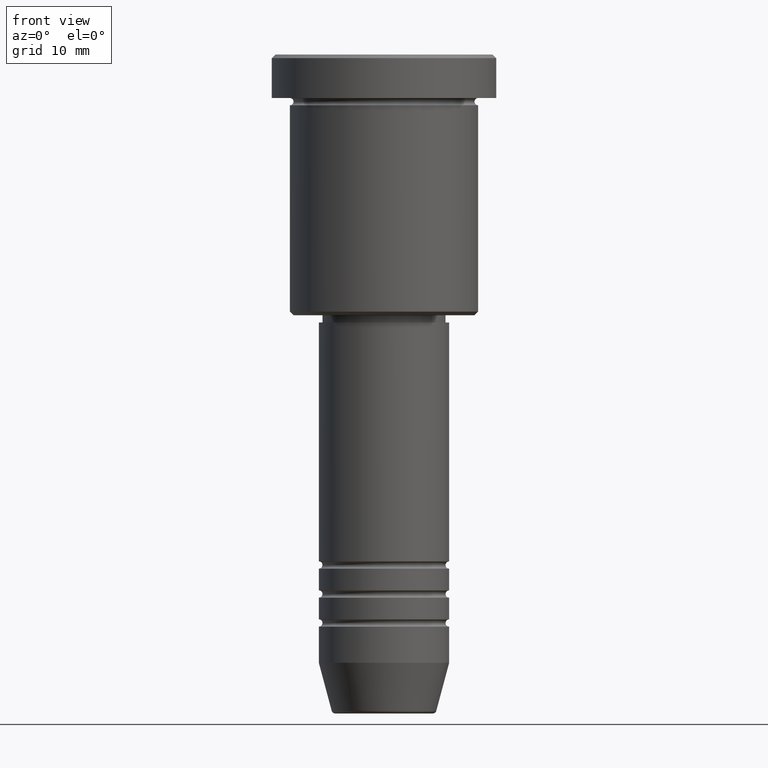
[diagram: clean part render]
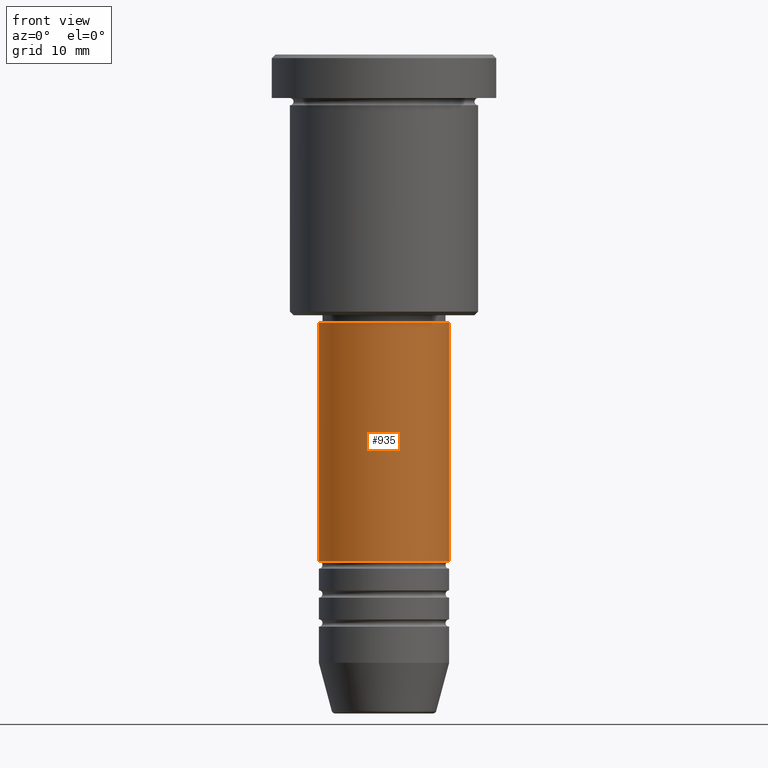
[diagram: same view with one face highlighted and labeled with its STEP entity id]
A machine part, front view. The second image highlights one B-rep face of the part: STEP entity #935.
In plain terms, the highlighted cylindrical surface (partial cylindrical patch) has radius 9 mm, axis along (-0, -0, 1).
Its self-contained STEP definition (entity closure, byte-faithful):
#15 = ORIENTED_EDGE ( 'NONE', *, *, #1081, .F. ) ;
#83 = CARTESIAN_POINT ( 'NONE',  ( 0.000000000000000000, 0.000000000000000000, -37.00000000000000000 ) ) ;
#241 = EDGE_CURVE ( 'NONE', #1008, #422, #998, .T. ) ;
#284 = CARTESIAN_POINT ( 'NONE',  ( -9.000000000000000000, 1.102182119232617714E-15, 0.000000000000000000 ) ) ;
#290 = VECTOR ( 'NONE', #455, 1000.000000000000000 ) ;
#302 = EDGE_CURVE ( 'NONE', #636, #1008, #365, .T. ) ;
#319 = DIRECTION ( 'NONE',  ( 1.000000000000000000, 0.000000000000000000, 0.000000000000000000 ) ) ;
#359 = DIRECTION ( 'NONE',  ( 1.000000000000000000, 0.000000000000000000, 0.000000000000000000 ) ) ;
#365 = CIRCLE ( 'NONE', #1124, 9.000000000000001776 ) ;
#395 = DIRECTION ( 'NONE',  ( 1.000000000000000000, 0.000000000000000000, 0.000000000000000000 ) ) ;
#422 = VERTEX_POINT ( 'NONE', #584 ) ;
#446 = DIRECTION ( 'NONE',  ( -0.000000000000000000, -0.000000000000000000, 1.000000000000000000 ) ) ;
#450 = CARTESIAN_POINT ( 'NONE',  ( 9.000000000000001776, 0.000000000000000000, -69.99999999999988631 ) ) ;
#455 = DIRECTION ( 'NONE',  ( -0.000000000000000000, -0.000000000000000000, 1.000000000000000000 ) ) ;
#470 = CARTESIAN_POINT ( 'NONE',  ( -9.000000000000001776, 1.102182119232617911E-15, -69.99999999999988631 ) ) ;
#478 = DIRECTION ( 'NONE',  ( -0.000000000000000000, -0.000000000000000000, 1.000000000000000000 ) ) ;
#512 = CYLINDRICAL_SURFACE ( 'NONE', #722, 9.000000000000000000 ) ;
#515 = ORIENTED_EDGE ( 'NONE', *, *, #741, .F. ) ;
#556 = CARTESIAN_POINT ( 'NONE',  ( 9.000000000000000000, 0.000000000000000000, 0.000000000000000000 ) ) ;
#584 = CARTESIAN_POINT ( 'NONE',  ( 8.999999999999998224, 0.000000000000000000, -37.00000000000000000 ) ) ;
#600 = CARTESIAN_POINT ( 'NONE',  ( 0.000000000000000000, 0.000000000000000000, 0.000000000000000000 ) ) ;
#636 = VERTEX_POINT ( 'NONE', #470 ) ;
#684 = ORIENTED_EDGE ( 'NONE', *, *, #241, .T. ) ;
#703 = VERTEX_POINT ( 'NONE', #928 ) ;
#722 = AXIS2_PLACEMENT_3D ( 'NONE', #600, #869, #319 ) ;
#723 = DIRECTION ( 'NONE',  ( -0.000000000000000000, -0.000000000000000000, 1.000000000000000000 ) ) ;
#741 = EDGE_CURVE ( 'NONE', #636, #703, #840, .T. ) ;
#742 = CIRCLE ( 'NONE', #881, 8.999999999999998224 ) ;
#759 = VECTOR ( 'NONE', #723, 1000.000000000000000 ) ;
#805 = CARTESIAN_POINT ( 'NONE',  ( 0.000000000000000000, 0.000000000000000000, -69.99999999999988631 ) ) ;
#840 = LINE ( 'NONE', #284, #290 ) ;
#856 = ORIENTED_EDGE ( 'NONE', *, *, #302, .T. ) ;
#869 = DIRECTION ( 'NONE',  ( -0.000000000000000000, -0.000000000000000000, 1.000000000000000000 ) ) ;
#881 = AXIS2_PLACEMENT_3D ( 'NONE', #83, #446, #359 ) ;
#928 = CARTESIAN_POINT ( 'NONE',  ( -8.999999999999998224, 1.102182119232617714E-15, -37.00000000000000000 ) ) ;
#935 = ADVANCED_FACE ( 'NONE', ( #1044 ), #512, .T. ) ;
#998 = LINE ( 'NONE', #556, #759 ) ;
#1008 = VERTEX_POINT ( 'NONE', #450 ) ;
#1044 = FACE_OUTER_BOUND ( 'NONE', #1060, .T. ) ;
#1060 = EDGE_LOOP ( 'NONE', ( #515, #856, #684, #15 ) ) ;
#1081 = EDGE_CURVE ( 'NONE', #703, #422, #742, .T. ) ;
#1124 = AXIS2_PLACEMENT_3D ( 'NONE', #805, #478, #395 ) ;